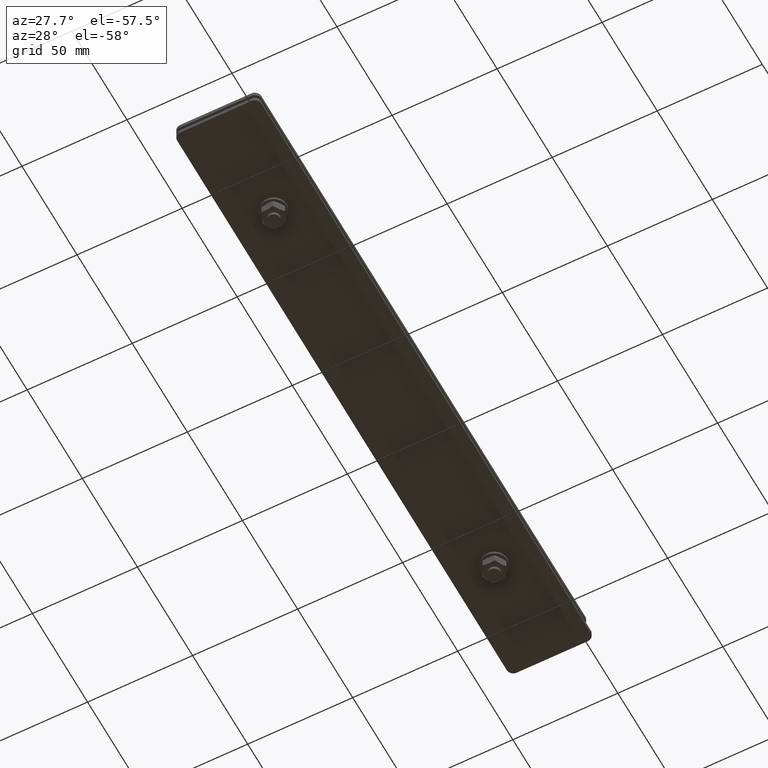
[diagram: clean part render]
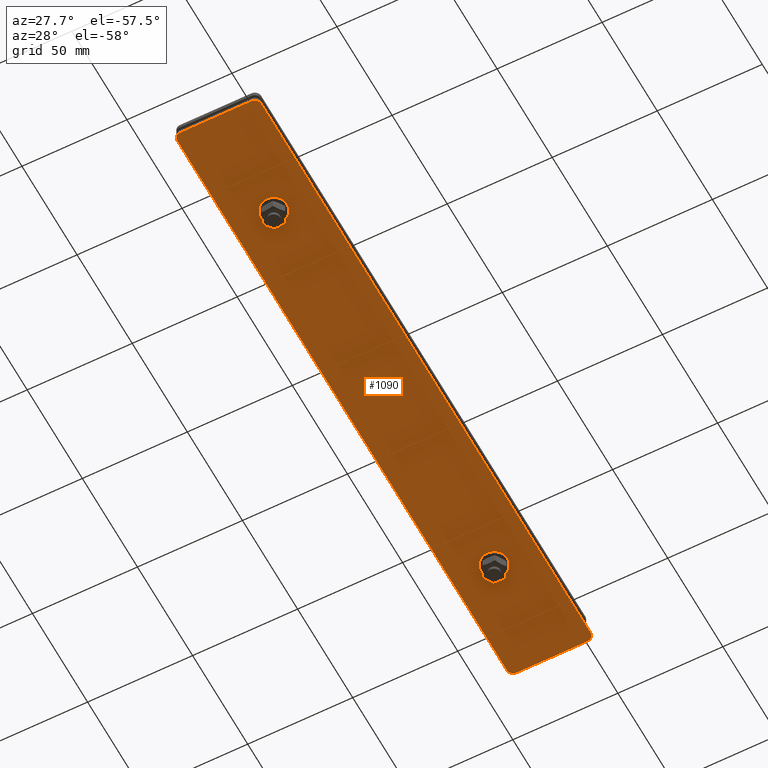
[diagram: same view with one face highlighted and labeled with its STEP entity id]
A machine part, auxiliary view. The second image highlights one B-rep face of the part: STEP entity #1090.
In plain terms, the highlighted planar face has unit normal (-0, 0, -1).
Its self-contained STEP definition (entity closure, byte-faithful):
#24 = CIRCLE ( 'NONE', #2975, 3.300000000000000711 ) ;
#119 = DIRECTION ( 'NONE',  ( 1.000000000000000000, -0.000000000000000000, -5.551115123125782702E-17 ) ) ;
#121 = EDGE_CURVE ( 'NONE', #917, #1463, #446, .T. ) ;
#124 = LINE ( 'NONE', #3640, #3537 ) ;
#174 = LINE ( 'NONE', #3687, #2243 ) ;
#194 = DIRECTION ( 'NONE',  ( -1.000000000000000000, 0.000000000000000000, 0.000000000000000000 ) ) ;
#214 = DIRECTION ( 'NONE',  ( 0.000000000000000000, -1.000000000000000000, 0.000000000000000000 ) ) ;
#229 = ORIENTED_EDGE ( 'NONE', *, *, #3111, .T. ) ;
#254 = VERTEX_POINT ( 'NONE', #2874 ) ;
#314 = CARTESIAN_POINT ( 'NONE',  ( -6.625255899450621655E-14, 175.5000000000000000, -2.000000000000000888 ) ) ;
#315 = EDGE_LOOP ( 'NONE', ( #1927 ) ) ;
#350 = VERTEX_POINT ( 'NONE', #2165 ) ;
#362 = DIRECTION ( 'NONE',  ( -1.000000000000000000, 0.000000000000000000, 0.000000000000000000 ) ) ;
#446 = CIRCLE ( 'NONE', #3401, 2.999999999999999556 ) ;
#479 = EDGE_CURVE ( 'NONE', #350, #350, #24, .T. ) ;
#481 = DIRECTION ( 'NONE',  ( -1.000000000000000000, 0.000000000000000000, 5.551115123125782702E-17 ) ) ;
#508 = ORIENTED_EDGE ( 'NONE', *, *, #3594, .T. ) ;
#562 = CARTESIAN_POINT ( 'NONE',  ( -6.625255899450621655E-14, 178.4000000000000057, -2.000000000000000888 ) ) ;
#599 = EDGE_CURVE ( 'NONE', #2683, #917, #174, .T. ) ;
#648 = DIRECTION ( 'NONE',  ( 5.551115123125782702E-17, 0.000000000000000000, 1.000000000000000000 ) ) ;
#761 = VECTOR ( 'NONE', #481, 1000.000000000000000 ) ;
#770 = ORIENTED_EDGE ( 'NONE', *, *, #121, .T. ) ;
#781 = EDGE_CURVE ( 'NONE', #2056, #2587, #3599, .T. ) ;
#805 = DIRECTION ( 'NONE',  ( -5.551115123125782702E-17, 0.000000000000000000, -1.000000000000000000 ) ) ;
#917 = VERTEX_POINT ( 'NONE', #2261 ) ;
#957 = ORIENTED_EDGE ( 'NONE', *, *, #781, .T. ) ;
#1090 = ADVANCED_FACE ( 'NONE', ( #3488, #1156, #1173 ), #2866, .T. ) ;
#1156 = FACE_BOUND ( 'NONE', #315, .T. ) ;
#1173 = FACE_BOUND ( 'NONE', #3736, .T. ) ;
#1186 = CIRCLE ( 'NONE', #3415, 3.000000000000002665 ) ;
#1202 = CARTESIAN_POINT ( 'NONE',  ( -37.00000000000007105, 175.5000000000000000, -1.999999999999999112 ) ) ;
#1265 = EDGE_CURVE ( 'NONE', #2587, #1395, #124, .T. ) ;
#1287 = CARTESIAN_POINT ( 'NONE',  ( -37.00000000000007105, 178.5000000000000000, -1.999999999999999112 ) ) ;
#1334 = VERTEX_POINT ( 'NONE', #1287 ) ;
#1366 = ORIENTED_EDGE ( 'NONE', *, *, #1655, .T. ) ;
#1395 = VERTEX_POINT ( 'NONE', #2556 ) ;
#1463 = VERTEX_POINT ( 'NONE', #1766 ) ;
#1651 = CARTESIAN_POINT ( 'NONE',  ( -6.625255899450621655E-14, -126.5000000000000000, -2.000000000000000888 ) ) ;
#1655 = EDGE_CURVE ( 'NONE', #1395, #1334, #1186, .T. ) ;
#1766 = CARTESIAN_POINT ( 'NONE',  ( -3.000000000000066613, -126.5000000000000000, -2.000000000000000888 ) ) ;
#1776 = CARTESIAN_POINT ( 'NONE',  ( -37.00000000000007105, -123.5000000000000000, -1.999999999999999112 ) ) ;
#1842 = CARTESIAN_POINT ( 'NONE',  ( -6.625255899450621655E-14, 178.5000000000000000, -2.000000000000000888 ) ) ;
#1871 = LINE ( 'NONE', #1651, #761 ) ;
#1881 = DIRECTION ( 'NONE',  ( -1.000000000000000000, 0.000000000000000000, 0.000000000000000000 ) ) ;
#1927 = ORIENTED_EDGE ( 'NONE', *, *, #479, .T. ) ;
#1930 = CIRCLE ( 'NONE', #2542, 2.999999999999999556 ) ;
#1931 = AXIS2_PLACEMENT_3D ( 'NONE', #1776, #2949, #2011 ) ;
#2011 = DIRECTION ( 'NONE',  ( -1.000000000000000000, 0.000000000000000000, 0.000000000000000000 ) ) ;
#2056 = VERTEX_POINT ( 'NONE', #2126 ) ;
#2089 = ORIENTED_EDGE ( 'NONE', *, *, #3157, .T. ) ;
#2112 = CARTESIAN_POINT ( 'NONE',  ( -20.00000000000001421, 126.0000000000000000, -2.000000000000000000 ) ) ;
#2126 = CARTESIAN_POINT ( 'NONE',  ( -37.00000000000007105, -126.5000000000000000, -1.999999999999999112 ) ) ;
#2165 = CARTESIAN_POINT ( 'NONE',  ( -23.30000000000001492, 126.0000000000000000, -2.000000000000000000 ) ) ;
#2238 = CARTESIAN_POINT ( 'NONE',  ( -20.00000000000001421, -74.00000000000001421, -2.000000000000000000 ) ) ;
#2243 = VECTOR ( 'NONE', #214, 1000.000000000000000 ) ;
#2245 = VECTOR ( 'NONE', #119, 1000.000000000000000 ) ;
#2261 = CARTESIAN_POINT ( 'NONE',  ( -6.625255899450621655E-14, -123.4999999999999432, -2.000000000000000888 ) ) ;
#2398 = DIRECTION ( 'NONE',  ( -5.551115123125782702E-17, -0.000000000000000000, -1.000000000000000000 ) ) ;
#2443 = EDGE_LOOP ( 'NONE', ( #229, #957, #2869, #1366, #508, #2824, #3121, #770 ) ) ;
#2464 = EDGE_CURVE ( 'NONE', #254, #2683, #1930, .T. ) ;
#2519 = DIRECTION ( 'NONE',  ( -0.000000000000000000, 1.000000000000000000, -0.000000000000000000 ) ) ;
#2542 = AXIS2_PLACEMENT_3D ( 'NONE', #3361, #2833, #194 ) ;
#2556 = CARTESIAN_POINT ( 'NONE',  ( -40.00000000000007105, 175.5000000000000000, -1.999999999999998224 ) ) ;
#2587 = VERTEX_POINT ( 'NONE', #2913 ) ;
#2650 = CARTESIAN_POINT ( 'NONE',  ( -3.000000000000066613, -123.5000000000000000, -2.000000000000000888 ) ) ;
#2683 = VERTEX_POINT ( 'NONE', #314 ) ;
#2824 = ORIENTED_EDGE ( 'NONE', *, *, #2464, .T. ) ;
#2833 = DIRECTION ( 'NONE',  ( -5.551115123125782702E-17, -0.000000000000000000, -1.000000000000000000 ) ) ;
#2866 = PLANE ( 'NONE',  #3655 ) ;
#2869 = ORIENTED_EDGE ( 'NONE', *, *, #1265, .T. ) ;
#2874 = CARTESIAN_POINT ( 'NONE',  ( -3.000000000000066613, 178.5000000000000000, -2.000000000000000888 ) ) ;
#2913 = CARTESIAN_POINT ( 'NONE',  ( -40.00000000000007105, -123.5000000000000000, -1.999999999999998224 ) ) ;
#2949 = DIRECTION ( 'NONE',  ( -5.551115123125782702E-17, -0.000000000000000000, -1.000000000000000000 ) ) ;
#2975 = AXIS2_PLACEMENT_3D ( 'NONE', #2112, #648, #1881 ) ;
#3035 = AXIS2_PLACEMENT_3D ( 'NONE', #2238, #3411, #3331 ) ;
#3094 = CIRCLE ( 'NONE', #3035, 3.300000000000000711 ) ;
#3111 = EDGE_CURVE ( 'NONE', #1463, #2056, #1871, .T. ) ;
#3121 = ORIENTED_EDGE ( 'NONE', *, *, #599, .T. ) ;
#3157 = EDGE_CURVE ( 'NONE', #3719, #3719, #3094, .T. ) ;
#3331 = DIRECTION ( 'NONE',  ( -1.000000000000000000, 0.000000000000000000, 0.000000000000000000 ) ) ;
#3361 = CARTESIAN_POINT ( 'NONE',  ( -3.000000000000066613, 175.5000000000000000, -2.000000000000000888 ) ) ;
#3363 = LINE ( 'NONE', #1842, #2245 ) ;
#3401 = AXIS2_PLACEMENT_3D ( 'NONE', #2650, #3623, #362 ) ;
#3411 = DIRECTION ( 'NONE',  ( 5.551115123125782702E-17, 0.000000000000000000, 1.000000000000000000 ) ) ;
#3413 = CARTESIAN_POINT ( 'NONE',  ( -23.30000000000001492, -74.00000000000001421, -2.000000000000000000 ) ) ;
#3415 = AXIS2_PLACEMENT_3D ( 'NONE', #1202, #2398, #3575 ) ;
#3468 = DIRECTION ( 'NONE',  ( 1.000000000000000000, -0.000000000000000000, -5.551115123125782702E-17 ) ) ;
#3488 = FACE_OUTER_BOUND ( 'NONE', #2443, .T. ) ;
#3537 = VECTOR ( 'NONE', #2519, 1000.000000000000000 ) ;
#3575 = DIRECTION ( 'NONE',  ( -1.000000000000000000, 0.000000000000000000, 0.000000000000000000 ) ) ;
#3594 = EDGE_CURVE ( 'NONE', #1334, #254, #3363, .T. ) ;
#3599 = CIRCLE ( 'NONE', #1931, 3.000000000000002665 ) ;
#3623 = DIRECTION ( 'NONE',  ( -5.551115123125782702E-17, -0.000000000000000000, -1.000000000000000000 ) ) ;
#3640 = CARTESIAN_POINT ( 'NONE',  ( -40.00000000000007105, 178.4000000000000057, -1.999999999999998224 ) ) ;
#3655 = AXIS2_PLACEMENT_3D ( 'NONE', #562, #805, #3468 ) ;
#3687 = CARTESIAN_POINT ( 'NONE',  ( -6.625255899450621655E-14, 178.4000000000000057, -2.000000000000000888 ) ) ;
#3719 = VERTEX_POINT ( 'NONE', #3413 ) ;
#3736 = EDGE_LOOP ( 'NONE', ( #2089 ) ) ;